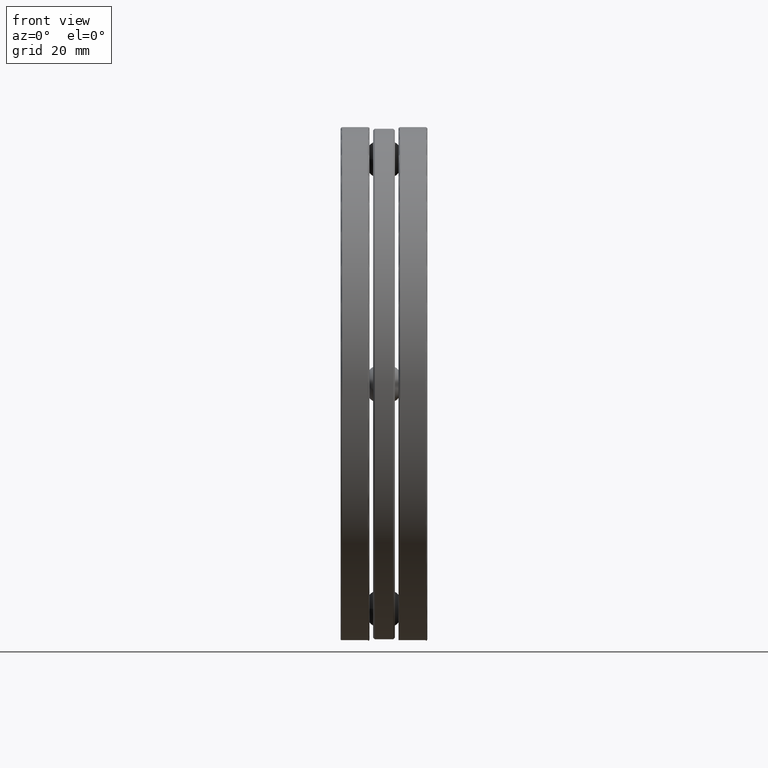
[diagram: clean part render]
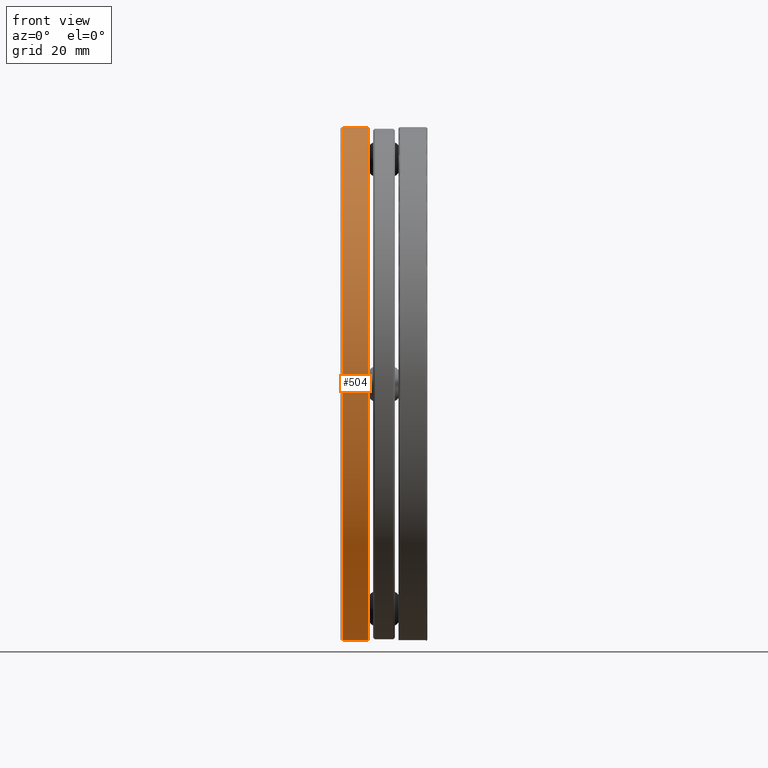
[diagram: same view with one face highlighted and labeled with its STEP entity id]
A machine part, front view. The second image highlights one B-rep face of the part: STEP entity #504.
In plain terms, the highlighted cylindrical surface (bore or boss wall) has radius 79.9973 mm, axis along (-1, -0, -0).
Its self-contained STEP definition (entity closure, byte-faithful):
#12 = AXIS2_PLACEMENT_3D ( 'NONE', #392, #194, #202 ) ;
#90 = VERTEX_POINT ( 'NONE', #303 ) ;
#101 = CARTESIAN_POINT ( 'NONE',  ( -0.5114999999999999500, 0.0000000000000000000, 3.149500000000001100 ) ) ;
#167 = CARTESIAN_POINT ( 'NONE',  ( -0.5114999999999999500, 0.0000000000000000000, 0.0000000000000000000 ) ) ;
#182 = DIRECTION ( 'NONE',  ( 0.0000000000000000000, 0.0000000000000000000, 1.000000000000000000 ) ) ;
#194 = DIRECTION ( 'NONE',  ( -1.000000000000000000, -0.0000000000000000000, -0.0000000000000000000 ) ) ;
#202 = DIRECTION ( 'NONE',  ( 0.0000000000000000000, 0.0000000000000000000, 1.000000000000000000 ) ) ;
#214 = ORIENTED_EDGE ( 'NONE', *, *, #264, .F. ) ;
#226 = DIRECTION ( 'NONE',  ( -1.000000000000000000, -0.0000000000000000000, -0.0000000000000000000 ) ) ;
#240 = FACE_OUTER_BOUND ( 'NONE', #797, .T. ) ;
#254 = DIRECTION ( 'NONE',  ( -1.000000000000000000, -0.0000000000000000000, -0.0000000000000000000 ) ) ;
#264 = EDGE_CURVE ( 'NONE', #680, #680, #416, .T. ) ;
#303 = CARTESIAN_POINT ( 'NONE',  ( -0.1971702099999997300, 0.0000000000000000000, 3.149500000000000200 ) ) ;
#350 = ORIENTED_EDGE ( 'NONE', *, *, #636, .T. ) ;
#392 = CARTESIAN_POINT ( 'NONE',  ( -0.1971702099999997300, 0.0000000000000000000, 0.0000000000000000000 ) ) ;
#402 = CYLINDRICAL_SURFACE ( 'NONE', #677, 3.149500000000001100 ) ;
#416 = CIRCLE ( 'NONE', #488, 3.149500000000001100 ) ;
#437 = FACE_OUTER_BOUND ( 'NONE', #498, .T. ) ;
#488 = AXIS2_PLACEMENT_3D ( 'NONE', #167, #226, #653 ) ;
#497 = CARTESIAN_POINT ( 'NONE',  ( 0.0000000000000000000, 0.0000000000000000000, 0.0000000000000000000 ) ) ;
#498 = EDGE_LOOP ( 'NONE', ( #350 ) ) ;
#504 = ADVANCED_FACE ( 'NONE', ( #240, #437 ), #402, .T. ) ;
#636 = EDGE_CURVE ( 'NONE', #90, #90, #743, .T. ) ;
#653 = DIRECTION ( 'NONE',  ( 0.0000000000000000000, 0.0000000000000000000, 1.000000000000000000 ) ) ;
#677 = AXIS2_PLACEMENT_3D ( 'NONE', #497, #254, #182 ) ;
#680 = VERTEX_POINT ( 'NONE', #101 ) ;
#743 = CIRCLE ( 'NONE', #12, 3.149500000000000200 ) ;
#797 = EDGE_LOOP ( 'NONE', ( #214 ) ) ;